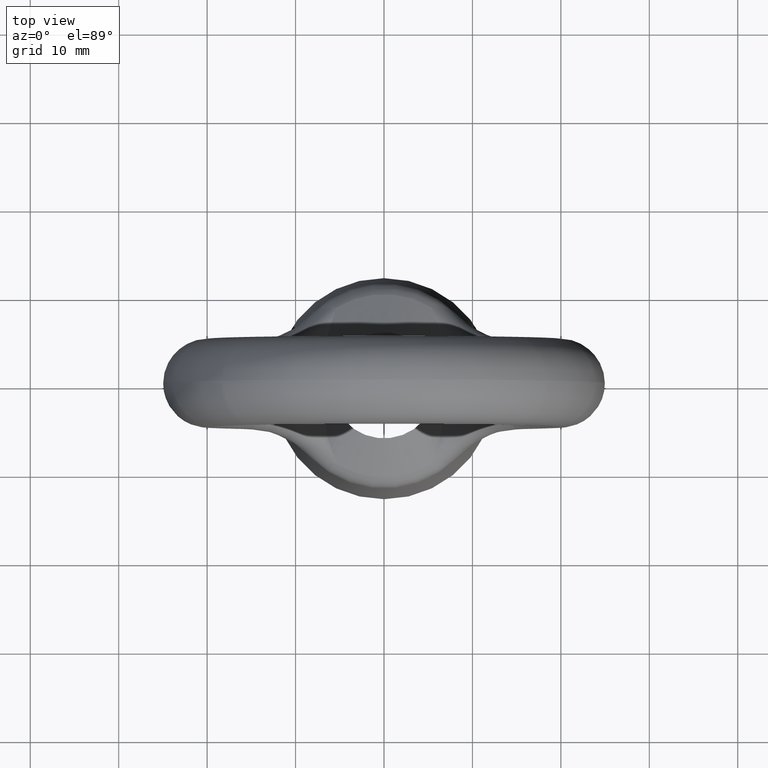
[diagram: clean part render]
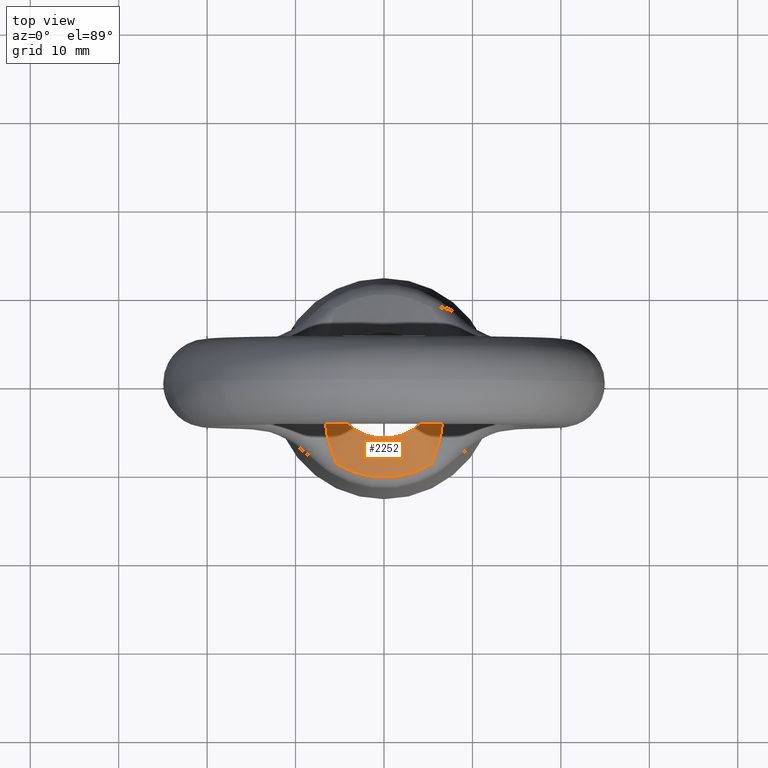
[diagram: same view with one face highlighted and labeled with its STEP entity id]
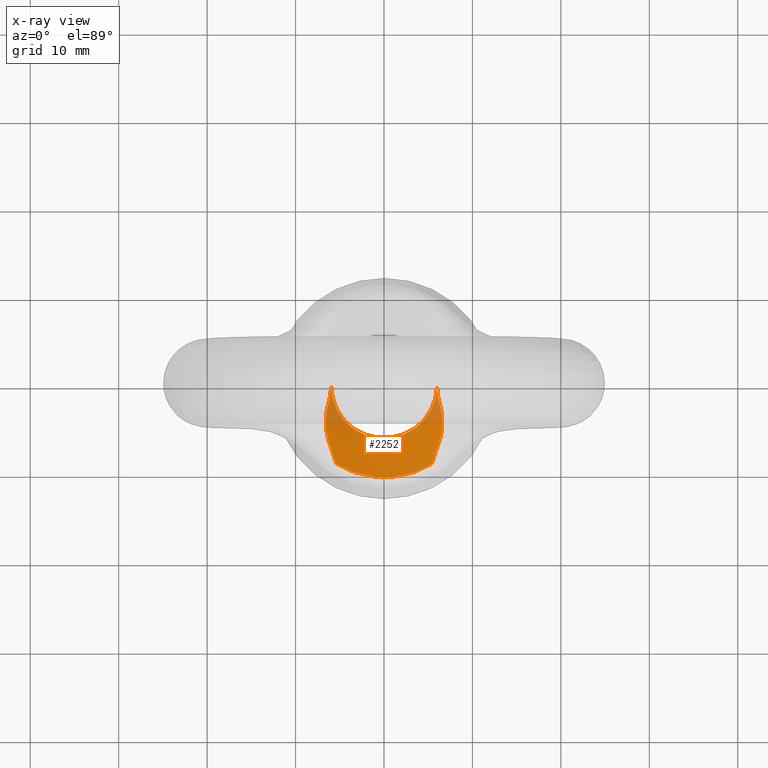
[diagram: x-ray of the same camera — body ghosted, the highlighted face saturated]
A machine part, top view. The second image highlights one B-rep face of the part: STEP entity #2252.
The next image is the same camera in x-ray: the body ghosted, the highlighted face saturated — about 12% of this face is hidden behind the body in this view.
In plain terms, the highlighted conical surface has half-angle 59.403 deg.
Its self-contained STEP definition (entity closure, byte-faithful):
#1945 = VERTEX_POINT ( 'NONE', #2096 ) ;
#1947 = EDGE_CURVE ( 'NONE', #1945, #1948, #2052, .T. ) ;
#1948 = VERTEX_POINT ( 'NONE', #2051 ) ;
#1977 = EDGE_CURVE ( 'NONE', #1984, #1948, #2774, .T. ) ;
#1984 = VERTEX_POINT ( 'NONE', #2675 ) ;
#1986 = EDGE_CURVE ( 'NONE', #1984, #1987, #2674, .T. ) ;
#1987 = VERTEX_POINT ( 'NONE', #2673 ) ;
#1993 = ORIENTED_EDGE ( 'NONE', *, *, #2215, .T. ) ;
#2044 = CARTESIAN_POINT ( 'NONE',  ( -6.000000000000000000, 0.0000000000000000000, -13.74772600000000000 ) ) ;
#2045 = CARTESIAN_POINT ( 'NONE',  ( -6.000001053483439200, -0.3504006684949155800, -13.74772662118588700 ) ) ;
#2046 = CARTESIAN_POINT ( 'NONE',  ( -6.020823813091262800, -0.7000108096584735100, -13.77859887902872800 ) ) ;
#2047 = CARTESIAN_POINT ( 'NONE',  ( -6.111031164038159600, -1.392009448283120500, -13.90070011183858500 ) ) ;
#2048 = CARTESIAN_POINT ( 'NONE',  ( -6.179245267279329200, -1.723825696552171000, -13.98982054532003800 ) ) ;
#2049 = CARTESIAN_POINT ( 'NONE',  ( -6.275957843287599800, -2.041516427262265200, -14.10231531665424000 ) ) ;
#2051 = CARTESIAN_POINT ( 'NONE',  ( -6.000000000000000000, 0.0000000000000000000, -13.74772600000000000 ) ) ;
#2052 = B_SPLINE_CURVE_WITH_KNOTS ( 'NONE', 3,
 ( #2049, #2048, #2047, #2046, #2045, #2044 ),
 .UNSPECIFIED., .F., .F.,
 ( 4, 2, 4 ),
 ( 0.006118880421807719100, 0.007165681863826861700, 0.008212483305846004400 ),
 .UNSPECIFIED. ) ;
#2078 = EDGE_LOOP ( 'NONE', ( #2079, #2084, #2081, #1993, #2216, #2218 ) ) ;
#2079 = ORIENTED_EDGE ( 'NONE', *, *, #1947, .F. ) ;
#2080 = EDGE_CURVE ( 'NONE', #1945, #2083, #11204, .T. ) ;
#2081 = ORIENTED_EDGE ( 'NONE', *, *, #2085, .T. ) ;
#2083 = VERTEX_POINT ( 'NONE', #11203 ) ;
#2084 = ORIENTED_EDGE ( 'NONE', *, *, #2080, .T. ) ;
#2085 = EDGE_CURVE ( 'NONE', #2083, #2086, #11183, .T. ) ;
#2086 = VERTEX_POINT ( 'NONE', #11160 ) ;
#2096 = CARTESIAN_POINT ( 'NONE',  ( -6.275957843287599800, -2.041516427262265200, -14.10231531665424000 ) ) ;
#2215 = EDGE_CURVE ( 'NONE', #2086, #1987, #2429, .T. ) ;
#2216 = ORIENTED_EDGE ( 'NONE', *, *, #1986, .F. ) ;
#2218 = ORIENTED_EDGE ( 'NONE', *, *, #1977, .T. ) ;
#2252 = ADVANCED_FACE ( 'NONE', ( #2478 ), #2480, .T. ) ;
#2408 = CARTESIAN_POINT ( 'NONE',  ( 6.275957843287589100, -2.041516427262265200, -14.10231531665424000 ) ) ;
#2409 = CARTESIAN_POINT ( 'NONE',  ( 6.446257093620289400, -2.600931712332815900, -14.30040512064131300 ) ) ;
#2410 = CARTESIAN_POINT ( 'NONE',  ( 6.545543853880053200, -3.171279231071202400, -14.49089258911269000 ) ) ;
#2411 = CARTESIAN_POINT ( 'NONE',  ( 6.588372985239139700, -4.042187782390639600, -14.76815088601140000 ) ) ;
#2412 = CARTESIAN_POINT ( 'NONE',  ( 6.584673798911950400, -4.336284277879620700, -14.85952151325035200 ) ) ;
#2413 = CARTESIAN_POINT ( 'NONE',  ( 6.540309408307304100, -4.924218852532499500, -15.03851489169132400 ) ) ;
#2414 = CARTESIAN_POINT ( 'NONE',  ( 6.499970521036369900, -5.214933981539299000, -15.12518433901122300 ) ) ;
#2415 = CARTESIAN_POINT ( 'NONE',  ( 6.385798669028871700, -5.789960168440503100, -15.29466877942100000 ) ) ;
#2416 = CARTESIAN_POINT ( 'NONE',  ( 6.311689591195170500, -6.074239352222560800, -15.37738165366279100 ) ) ;
#2417 = CARTESIAN_POINT ( 'NONE',  ( 6.137151311584108100, -6.636851843477715300, -15.54285025783459400 ) ) ;
#2418 = CARTESIAN_POINT ( 'NONE',  ( 6.036379557868360600, -6.915283398815630800, -15.62561334555835300 ) ) ;
#2419 = CARTESIAN_POINT ( 'NONE',  ( 5.831926945567873100, -7.467658016766167300, -15.80060161177226500 ) ) ;
#2420 = CARTESIAN_POINT ( 'NONE',  ( 5.729747271965208300, -7.741926198706862800, -15.89347629995653900 ) ) ;
#2421 = CARTESIAN_POINT ( 'NONE',  ( 5.541955642220996100, -8.290470268810121700, -16.09495938269170900 ) ) ;
#2422 = CARTESIAN_POINT ( 'NONE',  ( 5.455629065680609500, -8.565345021482142900, -16.20354401146500200 ) ) ;
#2423 = CARTESIAN_POINT ( 'NONE',  ( 5.377352643209920100, -8.839200673409159500, -16.31783482939199800 ) ) ;
#2429 = B_SPLINE_CURVE_WITH_KNOTS ( 'NONE', 3,
 ( #2423, #2422, #2421, #2420, #2419, #2418, #2417, #2416, #2415, #2414, #2413, #2412, #2411, #2410, #2409, #2408 ),
 .UNSPECIFIED., .F., .F.,
 ( 4, 2, 2, 2, 2, 2, 2, 4 ),
 ( -1.760032737387314200E-005, 0.0009030942652278493500, 0.001823788857829571700, 0.002744483450431294100, 0.003665178043033016700, 0.004585872635634739700, 0.005506567228236461400, 0.007347956413439910000 ),
 .UNSPECIFIED. ) ;
#2478 = FACE_OUTER_BOUND ( 'NONE', #2078, .T. ) ;
#2480 = CONICAL_SURFACE ( 'NONE', #2577, 11.49999118518192100, 1.036781442377381100 ) ;
#2574 = DIRECTION ( 'NONE',  ( -1.000000000000000000, 0.0000000000000000000, 0.0000000000000000000 ) ) ;
#2575 = DIRECTION ( 'NONE',  ( 0.0000000000000000000, 0.0000000000000000000, -1.000000000000000000 ) ) ;
#2576 = CARTESIAN_POINT ( 'NONE',  ( 0.0000000000000000000, 0.0000000000000000000, -16.99999700000000000 ) ) ;
#2577 = AXIS2_PLACEMENT_3D ( 'NONE', #2576, #2575, #2574 ) ;
#2667 = CARTESIAN_POINT ( 'NONE',  ( 6.275957843287589100, -2.041516427262265200, -14.10231531665424000 ) ) ;
#2668 = CARTESIAN_POINT ( 'NONE',  ( 6.178498510641107400, -1.721372678838702900, -13.98895192801370300 ) ) ;
#2669 = CARTESIAN_POINT ( 'NONE',  ( 6.110860768015208500, -1.389994756660807300, -13.90045655270017400 ) ) ;
#2670 = CARTESIAN_POINT ( 'NONE',  ( 6.021490864335722100, -0.7058315180901160200, -13.77951462015350400 ) ) ;
#2671 = CARTESIAN_POINT ( 'NONE',  ( 6.000001057648353800, -0.3502639382569838200, -13.74772662717408300 ) ) ;
#2672 = CARTESIAN_POINT ( 'NONE',  ( 6.000000000000000000, 0.0000000000000000000, -13.74772599999995900 ) ) ;
#2673 = CARTESIAN_POINT ( 'NONE',  ( 6.275957843287589100, -2.041516427262265200, -14.10231531665424000 ) ) ;
#2674 = B_SPLINE_CURVE_WITH_KNOTS ( 'NONE', 3,
 ( #2672, #2671, #2670, #2669, #2668, #2667 ),
 .UNSPECIFIED., .F., .F.,
 ( 4, 2, 4 ),
 ( 0.008212483305846007800, 0.009258875969322748500, 0.01030526863279948900 ),
 .UNSPECIFIED. ) ;
#2675 = CARTESIAN_POINT ( 'NONE',  ( 6.000000000000000000, 0.0000000000000000000, -13.74772599999995900 ) ) ;
#2707 = DIRECTION ( 'NONE',  ( -1.000000000000000000, 0.0000000000000000000, 0.0000000000000000000 ) ) ;
#2771 = DIRECTION ( 'NONE',  ( 0.0000000000000000000, 0.0000000000000000000, -1.000000000000000000 ) ) ;
#2772 = CARTESIAN_POINT ( 'NONE',  ( 0.0000000000000000000, 0.0000000000000000000, -13.74772600000000000 ) ) ;
#2773 = AXIS2_PLACEMENT_3D ( 'NONE', #2772, #2771, #2707 ) ;
#2774 = CIRCLE ( 'NONE', #2773, 6.000000000000000000 ) ;
#11160 = CARTESIAN_POINT ( 'NONE',  ( 5.377352643209920100, -8.839200673409159500, -16.31783482939199800 ) ) ;
#11179 = DIRECTION ( 'NONE',  ( 1.000000000000000000, 0.0000000000000000000, 0.0000000000000000000 ) ) ;
#11180 = DIRECTION ( 'NONE',  ( 0.0000000000000000000, 0.0000000000000000000, 1.000000000000000000 ) ) ;
#11181 = CARTESIAN_POINT ( 'NONE',  ( 0.0000000000000000000, 0.0000000000000000000, -16.31783482939199800 ) ) ;
#11182 = AXIS2_PLACEMENT_3D ( 'NONE', #11181, #11180, #11179 ) ;
#11183 = CIRCLE ( 'NONE', #11182, 10.34637086104270100 ) ;
#11184 = CARTESIAN_POINT ( 'NONE',  ( -5.377352643209929900, -8.839200673409140000, -16.31783482939199800 ) ) ;
#11185 = CARTESIAN_POINT ( 'NONE',  ( -5.416163547718727300, -8.703417953398988200, -16.26116731852999900 ) ) ;
#11186 = CARTESIAN_POINT ( 'NONE',  ( -5.457571432982091700, -8.564868178082980100, -16.20483864043808400 ) ) ;
#11187 = CARTESIAN_POINT ( 'NONE',  ( -5.543766662977666300, -8.290557248473888300, -16.09686310229422200 ) ) ;
#11188 = CARTESIAN_POINT ( 'NONE',  ( -5.588863800899909900, -8.153453348318208800, -16.04463340956528600 ) ) ;
#11189 = CARTESIAN_POINT ( 'NONE',  ( -5.729707275470453000, -7.742037053446008300, -15.89351491361840000 ) ) ;
#11190 = CARTESIAN_POINT ( 'NONE',  ( -5.831887482926608100, -7.467763518217994400, -15.80063637390778700 ) ) ;
#11191 = CARTESIAN_POINT ( 'NONE',  ( -6.036344679275279300, -6.915378746486921600, -15.62564221145305900 ) ) ;
#11192 = CARTESIAN_POINT ( 'NONE',  ( -6.137120542395549300, -6.636942173708203700, -15.54287704161042600 ) ) ;
#11193 = CARTESIAN_POINT ( 'NONE',  ( -6.311667472956378000, -6.074319498401267800, -15.37740500835864000 ) ) ;
#11194 = CARTESIAN_POINT ( 'NONE',  ( -6.385780984080782700, -5.790035154608085000, -15.29469072992095700 ) ) ;
#11195 = CARTESIAN_POINT ( 'NONE',  ( -6.499960529262389200, -5.214998385685053300, -15.12520347267184200 ) ) ;
#11196 = CARTESIAN_POINT ( 'NONE',  ( -6.540302732059489100, -4.924277841402179100, -15.03853263224082700 ) ) ;
#11197 = CARTESIAN_POINT ( 'NONE',  ( -6.584672409077733800, -4.336332178581011800, -14.85953631459059000 ) ) ;
#11198 = CARTESIAN_POINT ( 'NONE',  ( -6.588373556900328300, -4.042229041519976600, -14.76816384126178300 ) ) ;
#11199 = CARTESIAN_POINT ( 'NONE',  ( -6.545547901337672900, -3.171302270064931200, -14.49090028328317800 ) ) ;
#11200 = CARTESIAN_POINT ( 'NONE',  ( -6.446260533766122500, -2.600943012853230000, -14.30040912217279500 ) ) ;
#11201 = CARTESIAN_POINT ( 'NONE',  ( -6.275957843287599800, -2.041516427262265200, -14.10231531665424000 ) ) ;
#11203 = CARTESIAN_POINT ( 'NONE',  ( -5.377352643209929900, -8.839200673409140000, -16.31783482939199800 ) ) ;
#11204 = B_SPLINE_CURVE_WITH_KNOTS ( 'NONE', 3,
 ( #11201, #11200, #11199, #11198, #11197, #11196, #11195, #11194, #11193, #11192, #11191, #11190, #11189, #11188, #11187, #11186, #11185, #11184 ),
 .UNSPECIFIED., .F., .F.,
 ( 4, 2, 2, 2, 2, 2, 2, 2, 4 ),
 ( 0.0000000000000000000, 0.001825989935976927300, 0.002738984903965391100, 0.003651979871953854700, 0.004564974839942319100, 0.005477969807930782200, 0.006390964775919245400, 0.006847462259913479100, 0.007303959743907712800 ),
 .UNSPECIFIED. ) ;